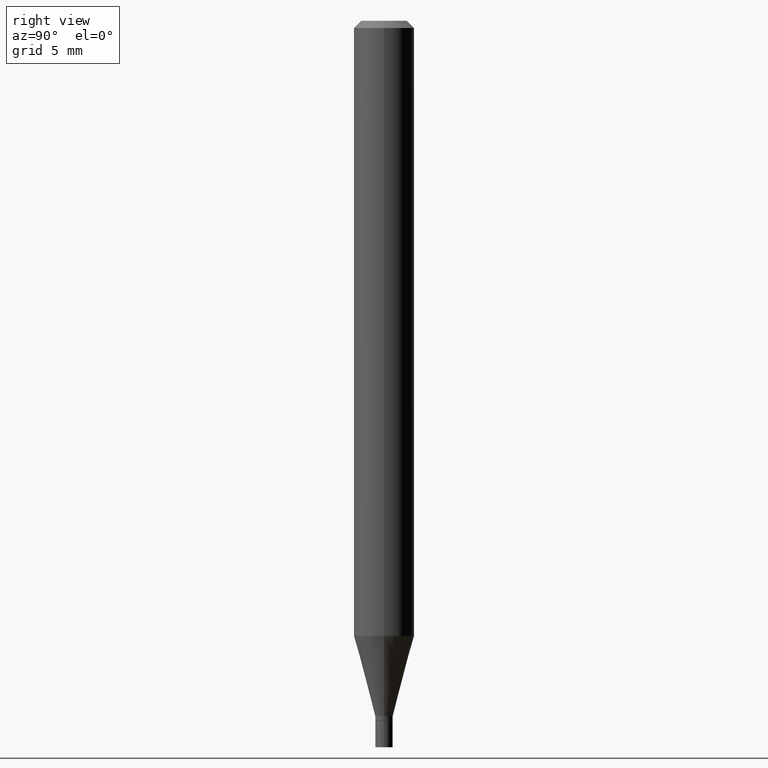
[diagram: clean part render]
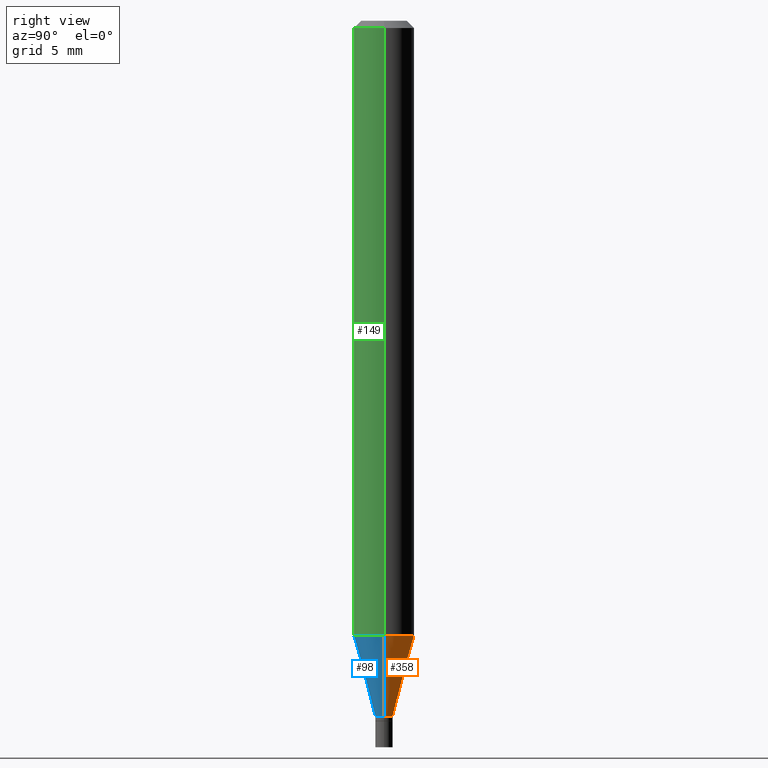
[diagram: same view with three faces highlighted in distinct colors, each labeled with its STEP entity id]
A machine part, right view with three faces highlighted in distinct colors.
Their STEP definitions:

[orange] entity #358 — the highlighted conical surface has half-angle 15 deg.
#3 = CARTESIAN_POINT ( 'NONE',  ( -0.01799999999999991537, -4.885869510141940473E-15, -1.436000000000000165 ) ) ;
#9 = DIRECTION ( 'NONE',  ( -2.445468806185136597E-29, 3.491481338843145583E-15, 1.000000000000000000 ) ) ;
#24 = ORIENTED_EDGE ( 'NONE', *, *, #269, .T. ) ;
#29 = CARTESIAN_POINT ( 'NONE',  ( -0.06250000000000000000, -3.989825826842961648E-15, -1.269923739063185453 ) ) ;
#57 = VERTEX_POINT ( 'NONE', #152 ) ;
#69 = CARTESIAN_POINT ( 'NONE',  ( 0.06250000000000000000, -4.870350204048415934E-15, -1.269923739063185453 ) ) ;
#81 = EDGE_CURVE ( 'NONE', #141, #438, #189, .T. ) ;
#94 = FACE_OUTER_BOUND ( 'NONE', #346, .T. ) ;
#136 = CIRCLE ( 'NONE', #147, 0.06250000000000000000 ) ;
#141 = VERTEX_POINT ( 'NONE', #221 ) ;
#147 = AXIS2_PLACEMENT_3D ( 'NONE', #352, #9, #256 ) ;
#152 = CARTESIAN_POINT ( 'NONE',  ( -0.01799999999999991537, -4.437847668492451061E-15, -1.436000000000000165 ) ) ;
#154 = AXIS2_PLACEMENT_3D ( 'NONE', #205, #333, #168 ) ;
#162 = DIRECTION ( 'NONE',  ( -0.2588190451025215721, 5.211531920934551831E-15, 0.9659258262890679791 ) ) ;
#164 = VERTEX_POINT ( 'NONE', #29 ) ;
#168 = DIRECTION ( 'NONE',  ( 1.000000000000000000, -6.982962677686258033E-15, 0.000000000000000000 ) ) ;
#173 = DIRECTION ( 'NONE',  ( -2.445468806185136597E-29, 3.491481338843145583E-15, 1.000000000000000000 ) ) ;
#189 = LINE ( 'NONE', #248, #421 ) ;
#205 = CARTESIAN_POINT ( 'NONE',  ( 3.511693205681857135E-29, -5.013767202578757831E-15, -1.436000000000000165 ) ) ;
#216 = VECTOR ( 'NONE', #162, 39.37007874015748143 ) ;
#221 = CARTESIAN_POINT ( 'NONE',  ( 0.01799999999999991537, -5.139460530777110033E-15, -1.436000000000000165 ) ) ;
#245 = AXIS2_PLACEMENT_3D ( 'NONE', #362, #173, #388 ) ;
#248 = CARTESIAN_POINT ( 'NONE',  ( 0.01799999999999991537, -5.139460530777110033E-15, -1.436000000000000165 ) ) ;
#256 = DIRECTION ( 'NONE',  ( 1.000000000000000000, -6.982962677686262766E-15, 0.000000000000000000 ) ) ;
#259 = LINE ( 'NONE', #3, #216 ) ;
#269 = EDGE_CURVE ( 'NONE', #141, #57, #327, .T. ) ;
#279 = EDGE_CURVE ( 'NONE', #438, #164, #136, .T. ) ;
#302 = ORIENTED_EDGE ( 'NONE', *, *, #389, .T. ) ;
#316 = CONICAL_SURFACE ( 'NONE', #154, 0.01799999999999991537, 0.2617993877991502960 ) ;
#327 = CIRCLE ( 'NONE', #245, 0.01799999999999991537 ) ;
#333 = DIRECTION ( 'NONE',  ( -2.445468806185136597E-29, 3.491481338843145583E-15, 1.000000000000000000 ) ) ;
#339 = ORIENTED_EDGE ( 'NONE', *, *, #81, .F. ) ;
#346 = EDGE_LOOP ( 'NONE', ( #24, #302, #440, #339 ) ) ;
#352 = CARTESIAN_POINT ( 'NONE',  ( 3.105558890113012854E-29, -4.433915036693023476E-15, -1.269923739063185453 ) ) ;
#358 = ADVANCED_FACE ( 'NONE', ( #94 ), #316, .T. ) ;
#362 = CARTESIAN_POINT ( 'NONE',  ( 3.511693205681857135E-29, -5.013767202578757831E-15, -1.436000000000000165 ) ) ;
#388 = DIRECTION ( 'NONE',  ( 1.000000000000000000, -6.982962677686258033E-15, 0.000000000000000000 ) ) ;
#389 = EDGE_CURVE ( 'NONE', #57, #164, #259, .T. ) ;
#391 = DIRECTION ( 'NONE',  ( 0.2588190451025215721, 1.565188264969619995E-15, 0.9659258262890679791 ) ) ;
#421 = VECTOR ( 'NONE', #391, 39.37007874015748143 ) ;
#438 = VERTEX_POINT ( 'NONE', #69 ) ;
#440 = ORIENTED_EDGE ( 'NONE', *, *, #279, .F. ) ;

[blue] entity #98 — the highlighted conical surface has half-angle 15 deg.
#3 = CARTESIAN_POINT ( 'NONE',  ( -0.01799999999999991537, -4.885869510141940473E-15, -1.436000000000000165 ) ) ;
#12 = ORIENTED_EDGE ( 'NONE', *, *, #81, .T. ) ;
#29 = CARTESIAN_POINT ( 'NONE',  ( -0.06250000000000000000, -3.989825826842961648E-15, -1.269923739063185453 ) ) ;
#35 = CARTESIAN_POINT ( 'NONE',  ( 3.105558890113012854E-29, -4.433915036693023476E-15, -1.269923739063185453 ) ) ;
#42 = EDGE_LOOP ( 'NONE', ( #243, #298, #12, #198 ) ) ;
#55 = AXIS2_PLACEMENT_3D ( 'NONE', #35, #187, #423 ) ;
#57 = VERTEX_POINT ( 'NONE', #152 ) ;
#58 = EDGE_CURVE ( 'NONE', #164, #438, #465, .T. ) ;
#69 = CARTESIAN_POINT ( 'NONE',  ( 0.06250000000000000000, -4.870350204048415934E-15, -1.269923739063185453 ) ) ;
#70 = CONICAL_SURFACE ( 'NONE', #75, 0.01799999999999991537, 0.2617993877991502960 ) ;
#73 = DIRECTION ( 'NONE',  ( 1.000000000000000000, -6.982962677686258033E-15, 0.000000000000000000 ) ) ;
#75 = AXIS2_PLACEMENT_3D ( 'NONE', #396, #292, #435 ) ;
#81 = EDGE_CURVE ( 'NONE', #141, #438, #189, .T. ) ;
#98 = ADVANCED_FACE ( 'NONE', ( #254 ), #70, .T. ) ;
#141 = VERTEX_POINT ( 'NONE', #221 ) ;
#152 = CARTESIAN_POINT ( 'NONE',  ( -0.01799999999999991537, -4.437847668492451061E-15, -1.436000000000000165 ) ) ;
#158 = AXIS2_PLACEMENT_3D ( 'NONE', #288, #247, #73 ) ;
#162 = DIRECTION ( 'NONE',  ( -0.2588190451025215721, 5.211531920934551831E-15, 0.9659258262890679791 ) ) ;
#164 = VERTEX_POINT ( 'NONE', #29 ) ;
#187 = DIRECTION ( 'NONE',  ( -2.445468806185136597E-29, 3.491481338843145583E-15, 1.000000000000000000 ) ) ;
#189 = LINE ( 'NONE', #248, #421 ) ;
#198 = ORIENTED_EDGE ( 'NONE', *, *, #58, .F. ) ;
#216 = VECTOR ( 'NONE', #162, 39.37007874015748143 ) ;
#221 = CARTESIAN_POINT ( 'NONE',  ( 0.01799999999999991537, -5.139460530777110033E-15, -1.436000000000000165 ) ) ;
#226 = EDGE_CURVE ( 'NONE', #57, #141, #393, .T. ) ;
#243 = ORIENTED_EDGE ( 'NONE', *, *, #389, .F. ) ;
#247 = DIRECTION ( 'NONE',  ( -2.445468806185136597E-29, 3.491481338843145583E-15, 1.000000000000000000 ) ) ;
#248 = CARTESIAN_POINT ( 'NONE',  ( 0.01799999999999991537, -5.139460530777110033E-15, -1.436000000000000165 ) ) ;
#254 = FACE_OUTER_BOUND ( 'NONE', #42, .T. ) ;
#259 = LINE ( 'NONE', #3, #216 ) ;
#288 = CARTESIAN_POINT ( 'NONE',  ( 3.511693205681857135E-29, -5.013767202578757831E-15, -1.436000000000000165 ) ) ;
#292 = DIRECTION ( 'NONE',  ( -2.445468806185136597E-29, 3.491481338843145583E-15, 1.000000000000000000 ) ) ;
#298 = ORIENTED_EDGE ( 'NONE', *, *, #226, .T. ) ;
#389 = EDGE_CURVE ( 'NONE', #57, #164, #259, .T. ) ;
#391 = DIRECTION ( 'NONE',  ( 0.2588190451025215721, 1.565188264969619995E-15, 0.9659258262890679791 ) ) ;
#393 = CIRCLE ( 'NONE', #158, 0.01799999999999991537 ) ;
#396 = CARTESIAN_POINT ( 'NONE',  ( 3.511693205681857135E-29, -5.013767202578757831E-15, -1.436000000000000165 ) ) ;
#421 = VECTOR ( 'NONE', #391, 39.37007874015748143 ) ;
#423 = DIRECTION ( 'NONE',  ( 1.000000000000000000, -6.982962677686262766E-15, 0.000000000000000000 ) ) ;
#435 = DIRECTION ( 'NONE',  ( 1.000000000000000000, -6.982962677686258033E-15, 0.000000000000000000 ) ) ;
#438 = VERTEX_POINT ( 'NONE', #69 ) ;
#465 = CIRCLE ( 'NONE', #55, 0.06250000000000000000 ) ;

[green] entity #149 — the highlighted cylindrical surface (edge-blend (fillet) strip) has radius 1.5875 mm, axis along (-0, 0, 1).
#1 = VERTEX_POINT ( 'NONE', #350 ) ;
#19 = DIRECTION ( 'NONE',  ( 1.000000000000000000, -6.982962677686266711E-15, 0.000000000000000000 ) ) ;
#29 = CARTESIAN_POINT ( 'NONE',  ( -0.06250000000000000000, -3.989825826842961648E-15, -1.269923739063185453 ) ) ;
#32 = CYLINDRICAL_SURFACE ( 'NONE', #83, 0.06250000000000000000 ) ;
#35 = CARTESIAN_POINT ( 'NONE',  ( 3.105558890113012854E-29, -4.433915036693023476E-15, -1.269923739063185453 ) ) ;
#37 = DIRECTION ( 'NONE',  ( -2.445468806185136877E-29, 3.491481338843145188E-15, 1.000000000000000000 ) ) ;
#39 = VECTOR ( 'NONE', #190, 39.37007874015748143 ) ;
#40 = CARTESIAN_POINT ( 'NONE',  ( -0.06250000000000000000, 4.440892098500626162E-16, -3.074334431409316114E-30 ) ) ;
#55 = AXIS2_PLACEMENT_3D ( 'NONE', #35, #187, #423 ) ;
#58 = EDGE_CURVE ( 'NONE', #164, #438, #465, .T. ) ;
#67 = ORIENTED_EDGE ( 'NONE', *, *, #58, .T. ) ;
#69 = CARTESIAN_POINT ( 'NONE',  ( 0.06250000000000000000, -4.870350204048415934E-15, -1.269923739063185453 ) ) ;
#74 = DIRECTION ( 'NONE',  ( 1.000000000000000000, -6.982962677686266711E-15, 4.876176775795935793E-29 ) ) ;
#83 = AXIS2_PLACEMENT_3D ( 'NONE', #111, #313, #74 ) ;
#105 = AXIS2_PLACEMENT_3D ( 'NONE', #257, #131, #19 ) ;
#111 = CARTESIAN_POINT ( 'NONE',  ( 0.000000000000000000, 0.000000000000000000, 0.000000000000000000 ) ) ;
#115 = EDGE_CURVE ( 'NONE', #1, #171, #263, .T. ) ;
#117 = CARTESIAN_POINT ( 'NONE',  ( 0.06250000000000000000, -4.888073874380388472E-16, -0.01499999999999999944 ) ) ;
#131 = DIRECTION ( 'NONE',  ( -2.445468806185136597E-29, 3.491481338843145583E-15, 1.000000000000000000 ) ) ;
#135 = EDGE_CURVE ( 'NONE', #438, #171, #249, .T. ) ;
#149 = ADVANCED_FACE ( 'NONE', ( #215 ), #32, .T. ) ;
#164 = VERTEX_POINT ( 'NONE', #29 ) ;
#171 = VERTEX_POINT ( 'NONE', #117 ) ;
#187 = DIRECTION ( 'NONE',  ( -2.445468806185136597E-29, 3.491481338843145583E-15, 1.000000000000000000 ) ) ;
#190 = DIRECTION ( 'NONE',  ( -2.445468806185136877E-29, 3.491481338843145188E-15, 1.000000000000000000 ) ) ;
#215 = FACE_OUTER_BOUND ( 'NONE', #409, .T. ) ;
#232 = ORIENTED_EDGE ( 'NONE', *, *, #115, .F. ) ;
#249 = LINE ( 'NONE', #345, #385 ) ;
#257 = CARTESIAN_POINT ( 'NONE',  ( 3.668203209277705088E-31, -5.237222008264718399E-17, -0.01499999999999999944 ) ) ;
#263 = CIRCLE ( 'NONE', #105, 0.06250000000000000000 ) ;
#313 = DIRECTION ( 'NONE',  ( -2.445468806185136597E-29, 3.491481338843145583E-15, 1.000000000000000000 ) ) ;
#329 = ORIENTED_EDGE ( 'NONE', *, *, #135, .T. ) ;
#345 = CARTESIAN_POINT ( 'NONE',  ( 0.06250000000000000000, -4.364351673553916694E-16, 3.047610484872459871E-30 ) ) ;
#347 = LINE ( 'NONE', #40, #39 ) ;
#350 = CARTESIAN_POINT ( 'NONE',  ( -0.06250000000000000000, -1.799054418537772859E-15, -0.01499999999999999944 ) ) ;
#385 = VECTOR ( 'NONE', #37, 39.37007874015748143 ) ;
#401 = EDGE_CURVE ( 'NONE', #164, #1, #347, .T. ) ;
#409 = EDGE_LOOP ( 'NONE', ( #416, #67, #329, #232 ) ) ;
#416 = ORIENTED_EDGE ( 'NONE', *, *, #401, .F. ) ;
#423 = DIRECTION ( 'NONE',  ( 1.000000000000000000, -6.982962677686262766E-15, 0.000000000000000000 ) ) ;
#438 = VERTEX_POINT ( 'NONE', #69 ) ;
#465 = CIRCLE ( 'NONE', #55, 0.06250000000000000000 ) ;